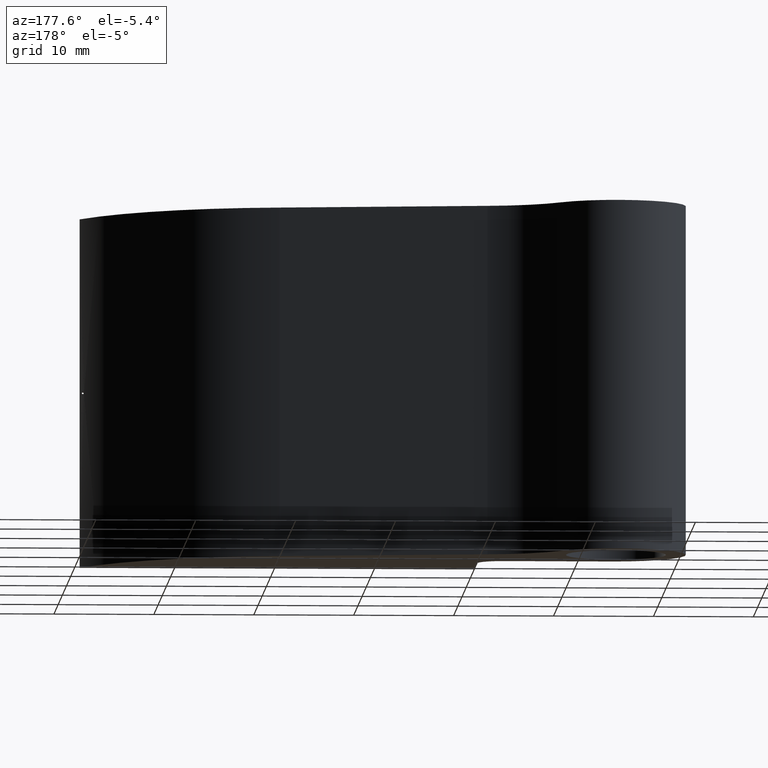
[diagram: clean part render]
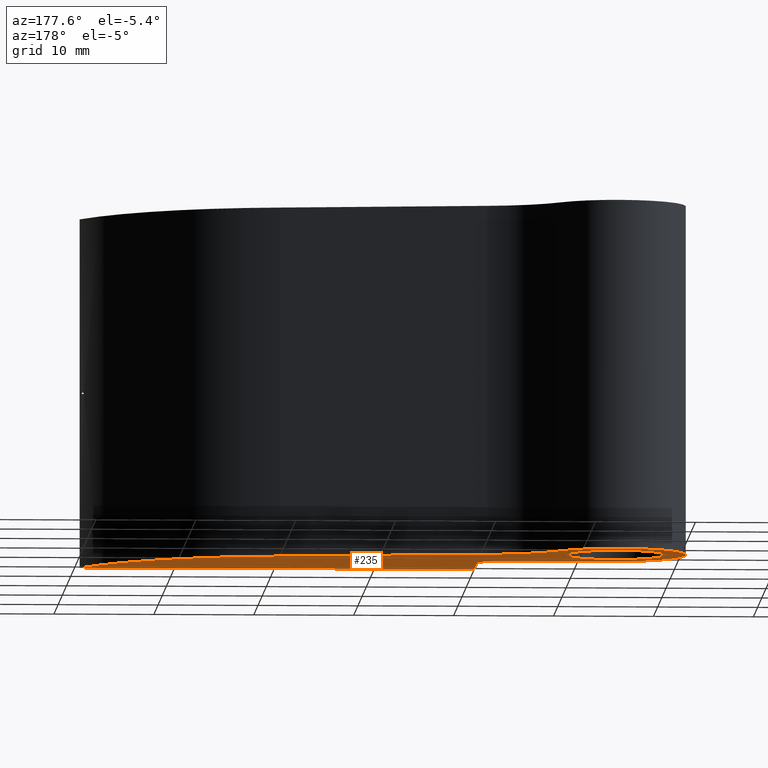
[diagram: same view with one face highlighted and labeled with its STEP entity id]
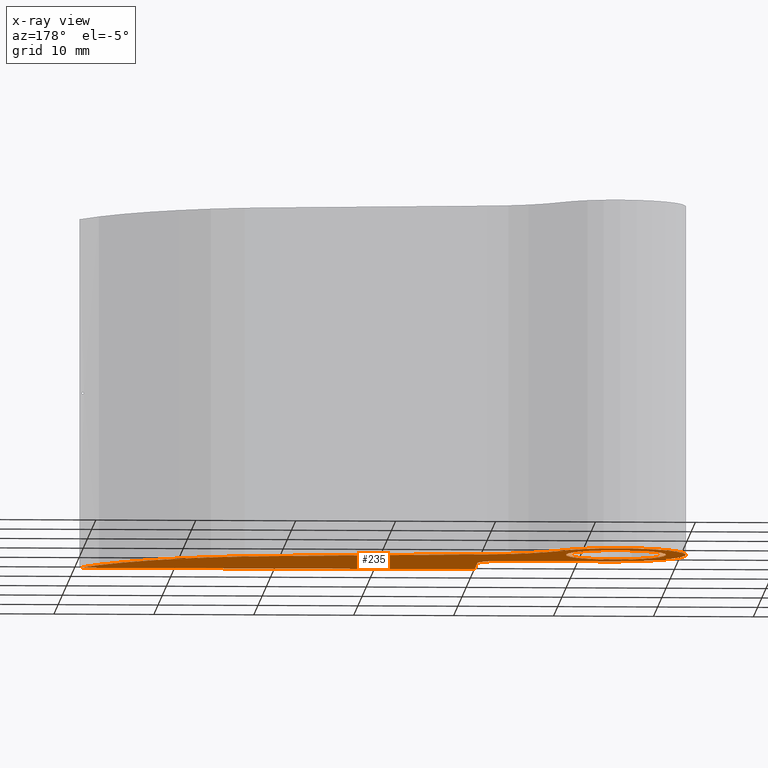
[diagram: x-ray of the same camera — body ghosted, the highlighted face saturated]
A machine part, auxiliary view. The second image highlights one B-rep face of the part: STEP entity #235.
The next image is the same camera in x-ray: the body ghosted, the highlighted face saturated — about 0% of this face is hidden behind the body in this view.
In plain terms, the highlighted planar face has unit normal (0, 0, 1).
Its self-contained STEP definition (entity closure, byte-faithful):
#15=LINE('',#407,#31);
#16=LINE('',#409,#32);
#17=LINE('',#413,#33);
#18=LINE('',#419,#34);
#31=VECTOR('',#296,39.5);
#32=VECTOR('',#297,6.5);
#33=VECTOR('',#300,10.9999999999994);
#34=VECTOR('',#305,20.8640507154188);
#47=PLANE('',#256);
#57=FACE_BOUND('',#97,.T.);
#65=CIRCLE('',#254,5.);
#67=CIRCLE('',#257,2.5);
#68=CIRCLE('',#258,7.);
#69=CIRCLE('',#259,10.);
#70=CIRCLE('',#260,24.5);
#79=FACE_OUTER_BOUND('',#96,.T.);
#96=EDGE_LOOP('',(#171,#172,#173,#174,#175,#176,#177,#178));
#97=EDGE_LOOP('',(#179));
#116=VERTEX_POINT('',#400);
#118=VERTEX_POINT('',#405);
#119=VERTEX_POINT('',#406);
#120=VERTEX_POINT('',#408);
#121=VERTEX_POINT('',#410);
#122=VERTEX_POINT('',#412);
#123=VERTEX_POINT('',#414);
#124=VERTEX_POINT('',#416);
#125=VERTEX_POINT('',#418);
#138=EDGE_CURVE('',#116,#116,#65,.T.);
#140=EDGE_CURVE('',#118,#119,#15,.T.);
#141=EDGE_CURVE('',#119,#120,#16,.T.);
#142=EDGE_CURVE('',#120,#121,#67,.T.);
#143=EDGE_CURVE('',#121,#122,#17,.T.);
#144=EDGE_CURVE('',#122,#123,#68,.T.);
#145=EDGE_CURVE('',#123,#124,#69,.T.);
#146=EDGE_CURVE('',#124,#125,#18,.T.);
#147=EDGE_CURVE('',#125,#118,#70,.T.);
#171=ORIENTED_EDGE('',*,*,#140,.T.);
#172=ORIENTED_EDGE('',*,*,#141,.T.);
#173=ORIENTED_EDGE('',*,*,#142,.T.);
#174=ORIENTED_EDGE('',*,*,#143,.T.);
#175=ORIENTED_EDGE('',*,*,#144,.T.);
#176=ORIENTED_EDGE('',*,*,#145,.T.);
#177=ORIENTED_EDGE('',*,*,#146,.T.);
#178=ORIENTED_EDGE('',*,*,#147,.T.);
#179=ORIENTED_EDGE('',*,*,#138,.T.);
#235=ADVANCED_FACE('',(#79,#57),#47,.F.);
#254=AXIS2_PLACEMENT_3D('',#401,#290,#291);
#256=AXIS2_PLACEMENT_3D('',#404,#294,#295);
#257=AXIS2_PLACEMENT_3D('',#411,#298,#299);
#258=AXIS2_PLACEMENT_3D('',#415,#301,#302);
#259=AXIS2_PLACEMENT_3D('',#417,#303,#304);
#260=AXIS2_PLACEMENT_3D('',#420,#306,#307);
#290=DIRECTION('center_axis',(0.,0.,1.));
#291=DIRECTION('ref_axis',(1.,0.,0.));
#294=DIRECTION('center_axis',(0.,0.,1.));
#295=DIRECTION('ref_axis',(1.,0.,0.));
#296=DIRECTION('',(-1.,1.0540092005935E-16,0.));
#297=DIRECTION('',(0.,1.,0.));
#298=DIRECTION('center_axis',(0.,0.,1.));
#299=DIRECTION('ref_axis',(1.,0.,0.));
#300=DIRECTION('',(-1.,0.,0.));
#301=DIRECTION('center_axis',(0.,0.,-1.));
#302=DIRECTION('ref_axis',(-0.806562039309799,-0.591149453813854,0.));
#303=DIRECTION('center_axis',(0.,0.,1.));
#304=DIRECTION('ref_axis',(-0.806562039309799,-0.591149453813855,0.));
#305=DIRECTION('',(0.991568697709726,-0.129582088740067,0.));
#306=DIRECTION('center_axis',(0.,0.,-1.));
#307=DIRECTION('ref_axis',(-0.89362720381593,-0.448810005013394,0.));
#400=CARTESIAN_POINT('',(-38.9999999999995,13.5,-17.5));
#401=CARTESIAN_POINT('Origin',(-33.9999999999995,13.5,-17.5));
#404=CARTESIAN_POINT('Origin',(-11.9526444164431,6.07996110615042,-17.5));
#405=CARTESIAN_POINT('',(19.,-2.5,-17.5));
#406=CARTESIAN_POINT('',(-20.5,-2.5,-17.5));
#407=CARTESIAN_POINT('',(19.,-2.5,-17.5));
#408=CARTESIAN_POINT('',(-20.5,4.,-17.5));
#409=CARTESIAN_POINT('',(-20.5,-2.5,-17.5));
#410=CARTESIAN_POINT('',(-23.,6.5,-17.5));
#411=CARTESIAN_POINT('Origin',(-23.,4.,-17.5));
#412=CARTESIAN_POINT('',(-33.9999999999995,6.5,-17.5));
#413=CARTESIAN_POINT('',(-23.,6.5,-17.5));
#414=CARTESIAN_POINT('',(-28.3540657248309,17.638046176697,-17.5));
#415=CARTESIAN_POINT('Origin',(-33.9999999999995,13.5,-17.5));
#416=CARTESIAN_POINT('',(-21.1475886524639,13.5865154336048,-17.5));
#417=CARTESIAN_POINT('Origin',(-20.2884453317329,23.5495407148355,-17.5));
#418=CARTESIAN_POINT('',(-0.459449055626422,10.8829081623221,-17.5));
#419=CARTESIAN_POINT('',(-21.1475886524639,13.5865154336048,-17.5));
#420=CARTESIAN_POINT('Origin',(-2.89386649349029,-13.4958451228282,-17.5));